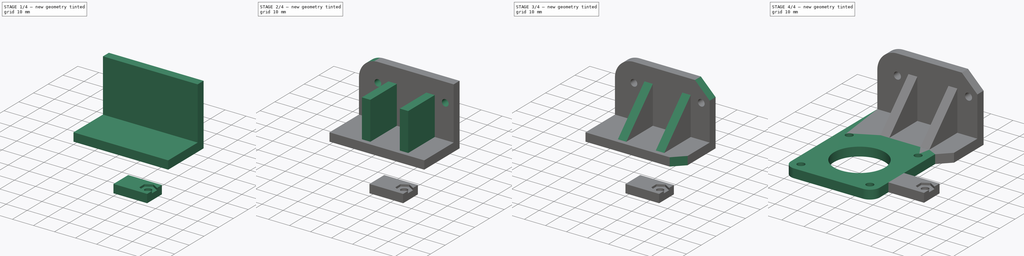
[diagram: build sequence overview — one tinted view per stage of 4, left to right]
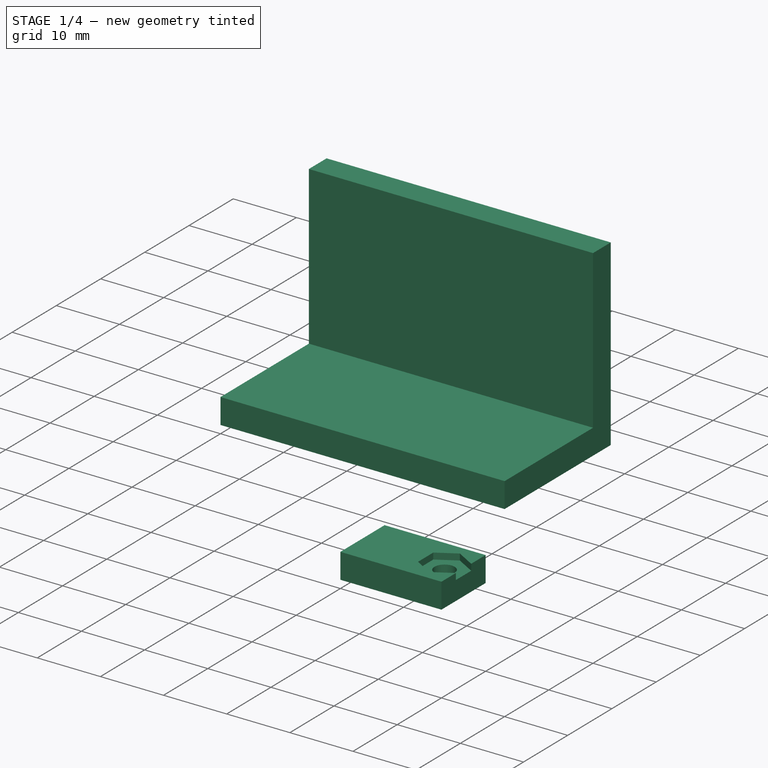
[diagram: stage 1 of 4 — iso view after this stage's code; geometry added in this stage tinted green]
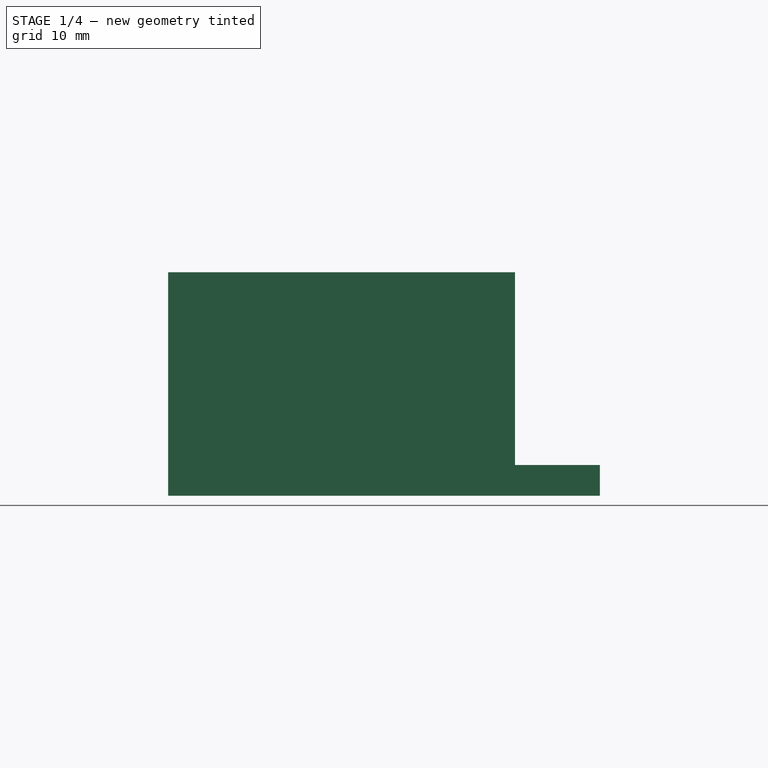
[diagram: stage 1 of 4 — front view after this stage's code; geometry added in this stage tinted green]
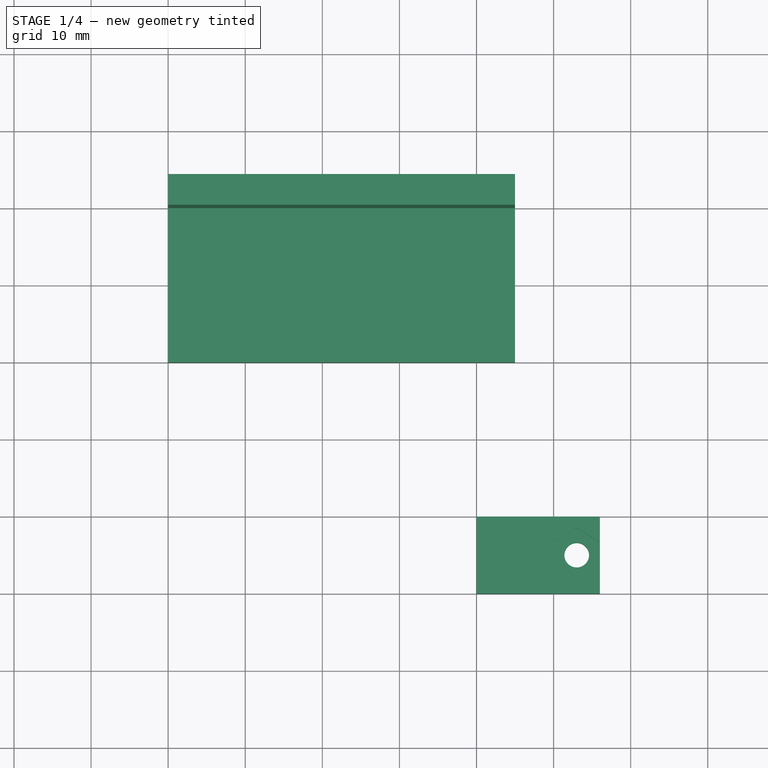
[diagram: stage 1 of 4 — top view after this stage's code; geometry added in this stage tinted green]
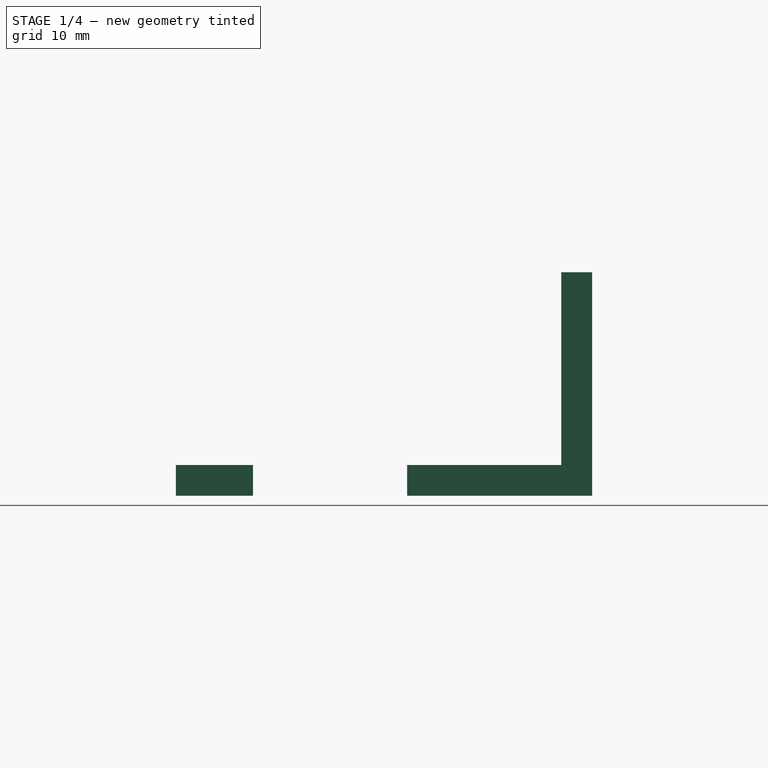
[diagram: stage 1 of 4 — right view after this stage's code; geometry added in this stage tinted green]
FCSTD DOCUMENT  (FreeCAD 0.18R14090 (Git))
Label: ExtruderDriveHolder_NEMA17
License: All rights reserved
LicenseURL: http://en.wikipedia.org/wiki/All_rights_reserved
objects: Sketcher::SketchObject×7, PartDesign::Pad×4, PartDesign::Pocket×3, PartDesign::Body×3, PartDesign::Chamfer×3, PartDesign::Fillet×2, PartDesign::Plane×1, Part::MultiFuse×1, App::Part×1, Part::FeaturePython×1
note: 32 computed .brp shape members not serialized (recipe doc carries the construction recipe); baked Part::Feature solids carry a one-line shape summary decoded from their .brp

FEATURE [Sketcher::SketchObject] Sketch001  label="ClippingBaseSketch"
  MapMode = 5
  Placement = pos=(0,0,0) rot=(0.57735,0.57735,0.57735;2.0944rad)
  Support = -> [YZ_Plane002]
  sketch-geometry (6):
    g0: LineSegment StartX=20 StartY=0 StartZ=0 EndX=44 EndY=0 EndZ=0
    g1: LineSegment StartX=40 StartY=4 StartZ=0 EndX=20 EndY=4 EndZ=0
    g2: LineSegment StartX=20 StartY=4 StartZ=0 EndX=20 EndY=0 EndZ=0
    g3: LineSegment StartX=44 StartY=0 StartZ=0 EndX=44 EndY=29 EndZ=0
    g4: LineSegment StartX=44 StartY=29 StartZ=0 EndX=40 EndY=29 EndZ=0
    g5: LineSegment StartX=40 StartY=29 StartZ=0 EndX=40 EndY=4 EndZ=0
  constraints (18):
    c: Coincident(g1,g2)
    c: Coincident(g2,g0)
    c: Horizontal(g0)
    c: Horizontal(g1)
    c: Vertical(g2)
    c: PointOnObject(g0,g-1)
    c: DistanceX(g-2,g0) = 20
    c: Distance(g1) = 20
    c: Coincident(g3,g4)
    c: Coincident(g4,g5)
    c: Horizontal(g4)
    c: Vertical(g3)
    c: Vertical(g5)
    c: Coincident(g0,g3)
    c: Distance(g1,g0) = 4
    c: Distance(g4) = 4
    c: Coincident(g1,g5)
    c: Distance(g5) = 25
FEATURE [PartDesign::Pad] Pad001  label="ClippingBasePad"
  Length = 25
  Length2 = 20
  Placement = pos=(0,0,0) rot=(0.57735,0.57735,0.57735;2.0944rad)
  Profile = -> Sketch001
  Type = 4
FEATURE [PartDesign::Body] Body001  label="ClippingBody"
  Group = -> [Sketch001,Pad001,Sketch002,Pad002,Sketch003,Pocket,Fillet001,Chamfer,Chamfer001,Chamfer002]
  Origin = -> Origin002
  Tip = -> Chamfer002
FEATURE [Sketcher::SketchObject] Sketch004  label="StandSketch"
  MapMode = 5
  Support = -> [XY_Plane003]
  sketch-geometry (4):
    g0: LineSegment StartX=20 StartY=0 StartZ=0 EndX=36 EndY=0 EndZ=0
    g1: LineSegment StartX=36 StartY=0 StartZ=0 EndX=36 EndY=-10 EndZ=0
    g2: LineSegment StartX=36 StartY=-10 StartZ=0 EndX=20 EndY=-10 EndZ=0
    g3: LineSegment StartX=20 StartY=-10 StartZ=0 EndX=20 EndY=0 EndZ=0
  constraints (12):
    c: Coincident(g0,g1)
    c: Coincident(g1,g2)
    c: Coincident(g2,g3)
    c: Coincident(g3,g0)
    c: Horizontal(g0)
    c: Horizontal(g2)
    c: Vertical(g1)
    c: Vertical(g3)
    c: PointOnObject(g0,g-1)
    c: DistanceX(g-2,g0) = 20
    c: Distance(g0) = 16
    c: Distance(g1) = 10
FEATURE [Sketcher::SketchObject] Sketch005  label="ScrewHoleSketch"
  ExternalGeometry = -> [Sketch004]
  MapMode = 5
  Support = -> [XY_Plane003]
  sketch-geometry (4):
    g0: Circle CenterX=33 CenterY=-5 CenterZ=0 NormalX=0 NormalY=0 NormalZ=1 AngleXU=0 Radius=1.6
    g1: LineSegment [constr] StartX=33 StartY=-5 StartZ=0 EndX=33 EndY=0 EndZ=0
    g2: LineSegment [constr] StartX=33 StartY=-5 StartZ=0 EndX=36 EndY=-5 EndZ=0
    g3: LineSegment [constr] StartX=33 StartY=-5 StartZ=0 EndX=33 EndY=-10 EndZ=0
  constraints (12):
    c: Radius(g0) = 1.6
    c: Coincident(g1,g0)
    c: Vertical(g1)
    c: Coincident(g2,g0)
    c: Horizontal(g2)
    c: PointOnObject(g2,g-3)
    c: PointOnObject(g1,g-1)
    c: Coincident(g3,g0)
    c: PointOnObject(g3,g-4)
    c: Vertical(g3)
    c: Equal(g1,g3)
    c: Distance(g2) = 3
FEATURE [PartDesign::Plane] DatumPlane  label="NutHolePlane"
  AttachmentOffset = pos=(0,0,4.5) rot=(0,0,1;0rad)
  MapMode = 5
  Placement = pos=(0,0,4.5) rot=(0,0,1;0rad)
  Support = -> [XY_Plane003]
FEATURE [Sketcher::SketchObject] Sketch006  label="NutHoleSketch"
  ExternalGeometry = -> [Sketch005]
  MapMode = 5
  Placement = pos=(0,0,4.5) rot=(0,0,1;0rad)
  Support = -> [DatumPlane]
  sketch-geometry (7):
    g0: LineSegment StartX=33 StartY=-8.4641 StartZ=0 EndX=36 EndY=-6.73205 EndZ=0
    g1: LineSegment StartX=36 StartY=-6.73205 StartZ=0 EndX=36 EndY=-3.26795 EndZ=0
    g2: LineSegment StartX=36 StartY=-3.26795 StartZ=0 EndX=33 EndY=-1.5359 EndZ=0
    g3: LineSegment StartX=33 StartY=-1.5359 StartZ=0 EndX=30 EndY=-3.26795 EndZ=0
    g4: LineSegment StartX=30 StartY=-3.26795 StartZ=0 EndX=30 EndY=-6.73205 EndZ=0
    g5: LineSegment StartX=30 StartY=-6.73205 StartZ=0 EndX=33 EndY=-8.4641 EndZ=0
    g6: Circle [constr] CenterX=33 CenterY=-5 CenterZ=0 NormalX=0 NormalY=0 NormalZ=1 AngleXU=0 Radius=3.4641
  constraints (16):
    c: Coincident(g0,g1)
    c: Coincident(g1,g2)
    c: Coincident(g2,g3)
    c: Coincident(g3,g4)
    c: Coincident(g4,g5)
    c: Coincident(g5,g0)
    c: Equal(g0, g1-g5) x5
    c: PointOnObject(g0,g6)
    c: PointOnObject(g1,g6)
    c: PointOnObject(g2,g6)
    c: PointOnObject(g3,g6)
    c: PointOnObject(g4,g6)
    c: PointOnObject(g5,g6)
    c: Coincident(g6,g-3)
    c: Distance(g3,g1) = 6
    c: Vertical(g1)
FEATURE [PartDesign::Pad] Pad003  label="StandPad"
  Length = 4
  Length2 = 100
  Profile = -> Sketch004
  Type = 0
FEATURE [PartDesign::Pocket] Pocket001  label="StandPocket"
  BaseFeature = -> Pad003
  Length = 5
  Length2 = 100
  Profile = -> Sketch005
  Reversed = true
  Type = 1
FEATURE [PartDesign::Pocket] Pocket002  label="NutHolePocket"
  BaseFeature = -> Pocket001
  Length = 1.5
  Length2 = 100
  Profile = -> Sketch006
  Type = 0
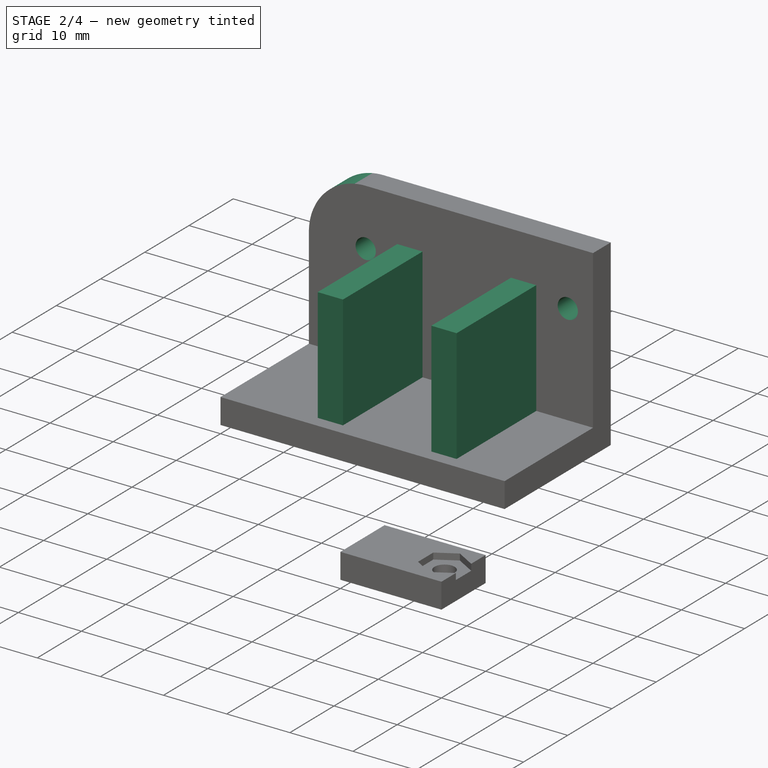
[diagram: stage 2 of 4 — iso view after this stage's code; geometry added in this stage tinted green]
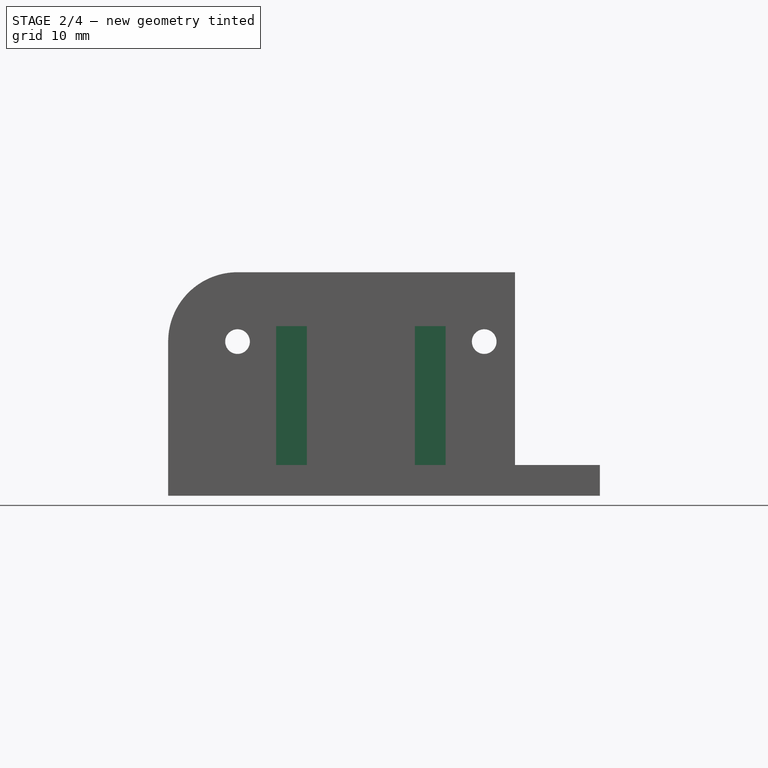
[diagram: stage 2 of 4 — front view after this stage's code; geometry added in this stage tinted green]
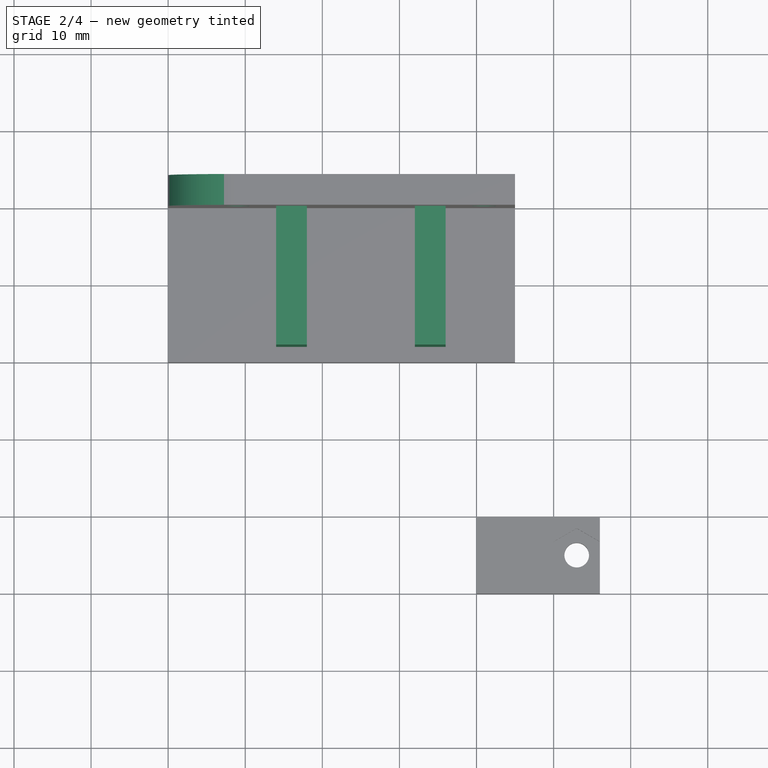
[diagram: stage 2 of 4 — top view after this stage's code; geometry added in this stage tinted green]
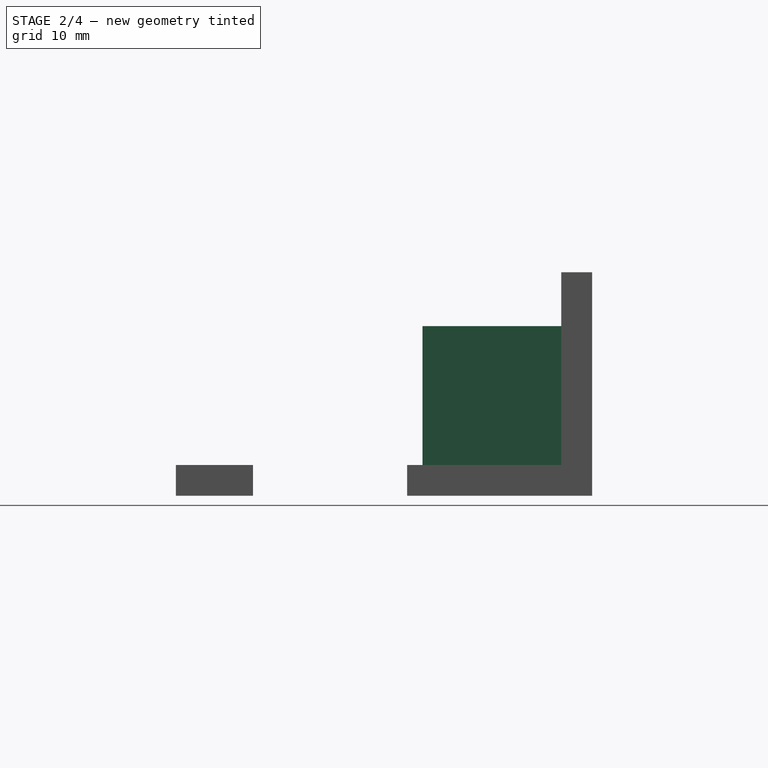
[diagram: stage 2 of 4 — right view after this stage's code; geometry added in this stage tinted green]
FEATURE [Sketcher::SketchObject] Sketch002  label="StiffenerSketch"
  ExternalGeometry = -> [Sketch001]
  MapMode = 5
  Support = -> [XY_Plane002]
  sketch-geometry (16):
    g0: LineSegment StartX=12 StartY=40 StartZ=0 EndX=16 EndY=40 EndZ=0
    g1: LineSegment StartX=16 StartY=40 StartZ=0 EndX=16 EndY=22 EndZ=0
    g2: LineSegment StartX=16 StartY=22 StartZ=0 EndX=12 EndY=22 EndZ=0
    g3: LineSegment StartX=12 StartY=22 StartZ=0 EndX=12 EndY=40 EndZ=0
    g4: LineSegment StartX=-6 StartY=40 StartZ=0 EndX=-2 EndY=40 EndZ=0
    g5: LineSegment StartX=-2 StartY=40 StartZ=0 EndX=-2 EndY=22 EndZ=0
    g6: LineSegment StartX=-2 StartY=22 StartZ=0 EndX=-6 EndY=22 EndZ=0
    g7: LineSegment StartX=-6 StartY=22 StartZ=0 EndX=-6 EndY=40 EndZ=0
    g8: LineSegment [constr] StartX=4e-12 StartY=40 StartZ=0 EndX=-20 EndY=40 EndZ=0
    g9: LineSegment [constr] StartX=4e-12 StartY=40 StartZ=0 EndX=30 EndY=40 EndZ=0
    g10: LineSegment [constr] StartX=-20 StartY=40 StartZ=0 EndX=-20 EndY=22 EndZ=0
    g11: LineSegment [constr] StartX=-2 StartY=22 StartZ=0 EndX=12 EndY=22 EndZ=0
    g12: LineSegment [constr] StartX=16 StartY=22 StartZ=0 EndX=30 EndY=22 EndZ=0
    g13: LineSegment [constr] StartX=30 StartY=22 StartZ=0 EndX=30 EndY=40 EndZ=0
    g14: LineSegment [constr] StartX=-6 StartY=22 StartZ=0 EndX=-10 EndY=22 EndZ=0
    g15: LineSegment [constr] StartX=-10 StartY=22 StartZ=0 EndX=-20 EndY=22 EndZ=0
  constraints (45):
    c: Coincident(g0,g1)
    c: Coincident(g1,g2)
    c: Coincident(g2,g3)
    c: Coincident(g3,g0)
    c: Horizontal(g0)
    c: Horizontal(g2)
    c: Vertical(g1)
    c: Vertical(g3)
    c: Coincident(g4,g5)
    c: Coincident(g5,g6)
    c: Coincident(g6,g7)
    c: Coincident(g7,g4)
    c: Horizontal(g4)
    c: Horizontal(g6)
    c: Vertical(g5)
    c: Vertical(g7)
    c: Equal(g4,g0)
    c: Distance(g6) = 4
    c: Distance(g1) = 18
    c: Coincident(g8,g-3)
    c: Horizontal(g8)
    c: Coincident(g9,g8)
    c: Horizontal(g9)
    c: PointOnObject(g0,g9)
    c: PointOnObject(g4,g8)
    c: Distance(g8) = 20
    c: Distance(g9) = 30
    c: Coincident(g10,g8)
    c: Vertical(g10)
    c: Coincident(g11,g5)
    c: Coincident(g11,g2)
    c: Horizontal(g11)
    c: Coincident(g12,g1)
    c: Horizontal(g12)
    c: Coincident(g13,g12)
    c: Coincident(g13,g9)
    c: Vertical(g13)
    c: Coincident(g14,g6)
    c: Horizontal(g14)
    c: Coincident(g15,g14)
    c: Coincident(g15,g10)
    c: Horizontal(g15)
    c: Distance(g15) = 10
    c: Equal(g12,g11)
    c: Distance(g14) = 4
FEATURE [PartDesign::Pad] Pad002  label="StiffenerPad"
  BaseFeature = -> Pad001
  Length = 22
  Length2 = 100
  Placement = pos=(0,0,0) rot=(0.57735,0.57735,0.57735;2.0944rad)
  Profile = -> Sketch002
  Type = 0
FEATURE [Sketcher::SketchObject] Sketch003  label="ScrewsSketch"
  MapMode = 5
  Placement = pos=(0,0,0) rot=(1,0,0;1.5708rad)
  Support = -> [XZ_Plane002]
  sketch-geometry (5):
    g0: Circle CenterX=21 CenterY=20 CenterZ=0 NormalX=0 NormalY=0 NormalZ=1 AngleXU=0 Radius=1.6
    g1: Circle CenterX=-11 CenterY=20 CenterZ=0 NormalX=0 NormalY=0 NormalZ=1 AngleXU=0 Radius=1.6
    g2: LineSegment [constr] StartX=0 StartY=20 StartZ=0 EndX=0 EndY=0 EndZ=0
    g3: LineSegment [constr] StartX=0 StartY=20 StartZ=0 EndX=-11 EndY=20 EndZ=0
    g4: LineSegment [constr] StartX=0 StartY=20 StartZ=0 EndX=21 EndY=20 EndZ=0
  constraints (13):
    c: Coincident(g2,g-1)
    c: PointOnObject(g2,g-2)
    c: Radius(g1) = 1.6
    c: Equal(g1,g0)
    c: Distance(g2) = 20
    c: Coincident(g3,g2)
    c: Horizontal(g3)
    c: Coincident(g4,g2)
    c: Horizontal(g4)
    c: Distance(g4) = 21
    c: Distance(g3) = 11
    c: Coincident(g0,g4)
    c: Coincident(g1,g3)
FEATURE [PartDesign::Pocket] Pocket  label="ScrewsPocket"
  BaseFeature = -> Pad002
  Length = 5
  Length2 = 100
  Placement = pos=(0,0,0) rot=(0.57735,0.57735,0.57735;2.0944rad)
  Profile = -> Sketch003
  Type = 1
FEATURE [PartDesign::Body] Body  label="Nema17HolderBody"
  Group = -> [Sketch,Pad,Fillet]
  Origin = -> Origin001
  Tip = -> Fillet
FEATURE [PartDesign::Fillet] Fillet001  label="ClippingCornerFillet"
  Base = -> Pocket [Edge28]
  BaseFeature = -> Pocket
  Placement = pos=(0,0,0) rot=(0.57735,0.57735,0.57735;2.0944rad)
  Radius = 9
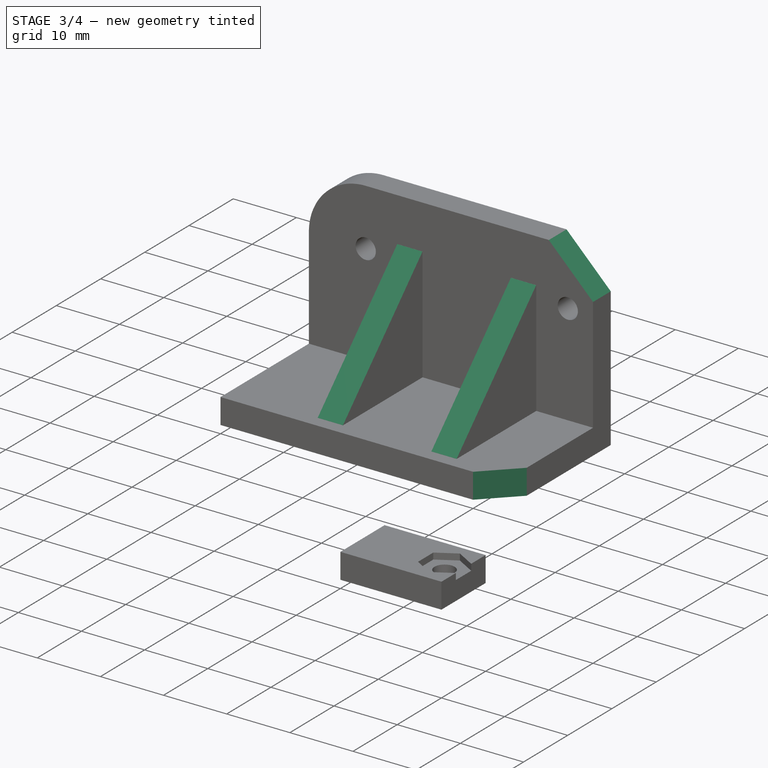
[diagram: stage 3 of 4 — iso view after this stage's code; geometry added in this stage tinted green]
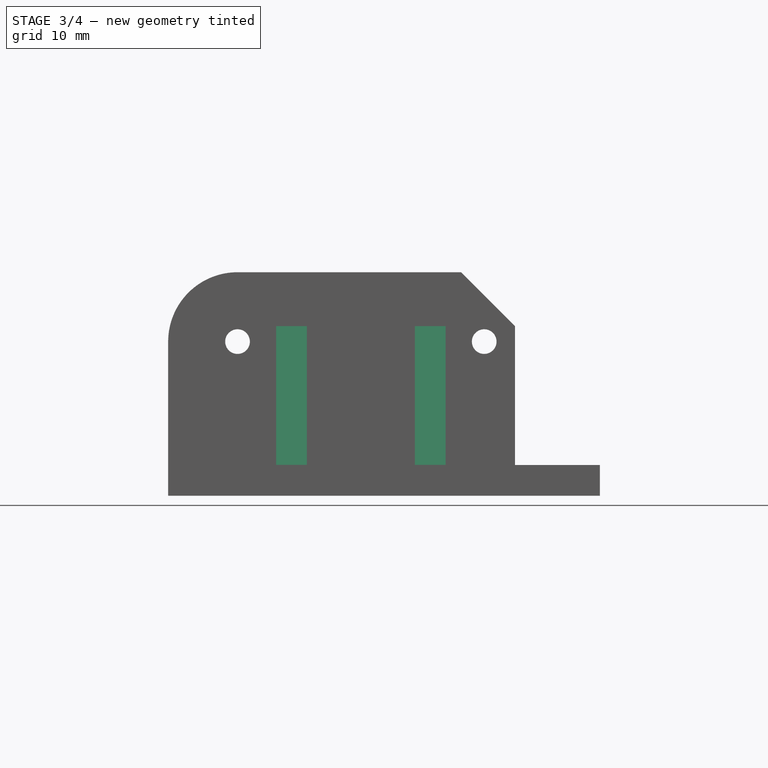
[diagram: stage 3 of 4 — front view after this stage's code; geometry added in this stage tinted green]
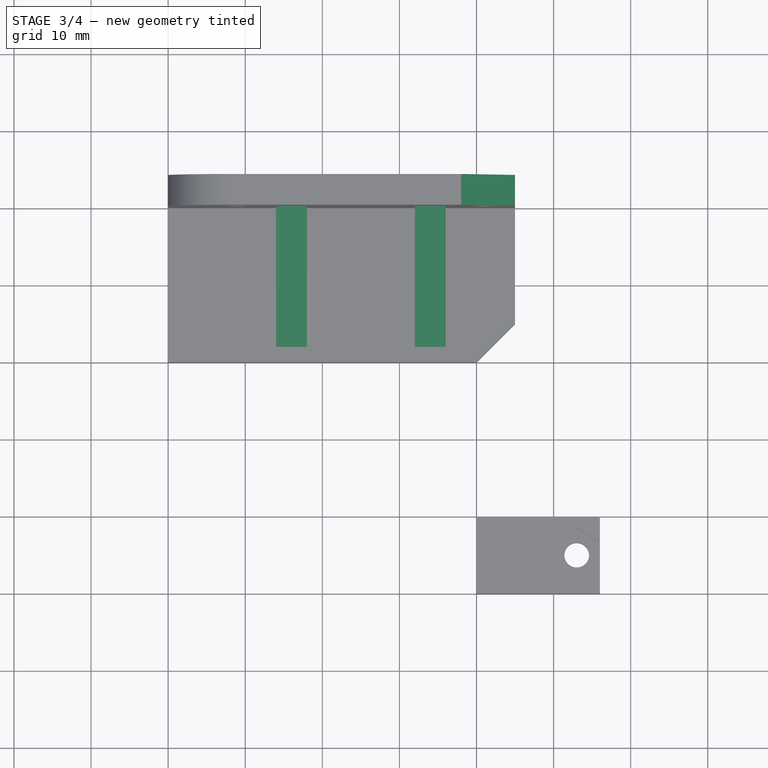
[diagram: stage 3 of 4 — top view after this stage's code; geometry added in this stage tinted green]
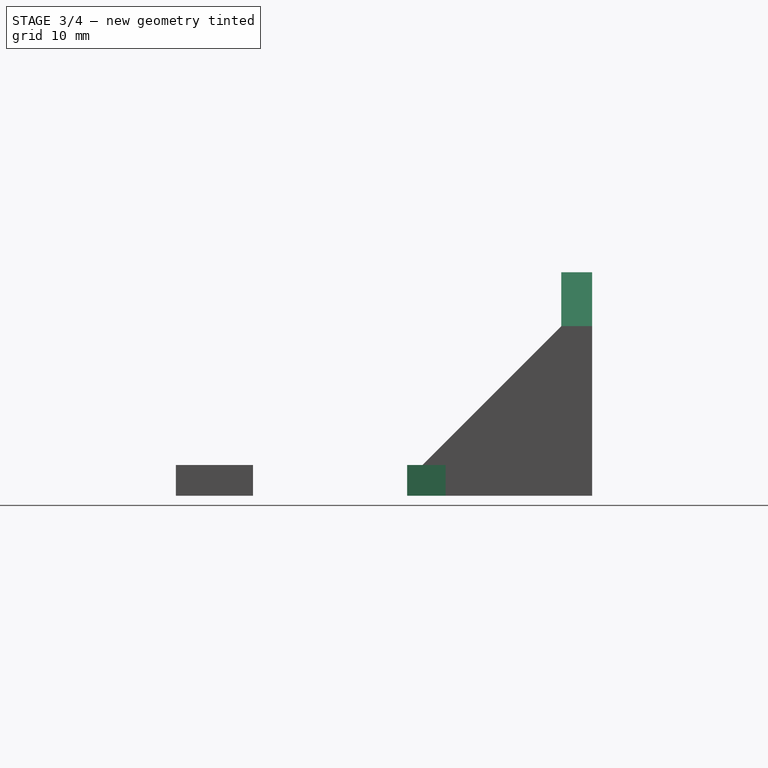
[diagram: stage 3 of 4 — right view after this stage's code; geometry added in this stage tinted green]
FEATURE [PartDesign::Chamfer] Chamfer  label="ClippingCornerChamfer1"
  Base = -> Fillet001 [Edge47]
  BaseFeature = -> Fillet001
  Placement = pos=(0,0,0) rot=(0.57735,0.57735,0.57735;2.0944rad)
  Size = 7
FEATURE [PartDesign::Chamfer] Chamfer001  label="ClippingCornerChamfer2"
  Base = -> Chamfer [Edge18]
  BaseFeature = -> Chamfer
  Placement = pos=(0,0,0) rot=(0.57735,0.57735,0.57735;2.0944rad)
  Size = 5
FEATURE [PartDesign::Chamfer] Chamfer002  label="StiffenersChamfer"
  Base = -> Chamfer001 [Edge60,Edge63]
  BaseFeature = -> Chamfer001
  Placement = pos=(0,0,0) rot=(0.57735,0.57735,0.57735;2.0944rad)
  Size = 17.99
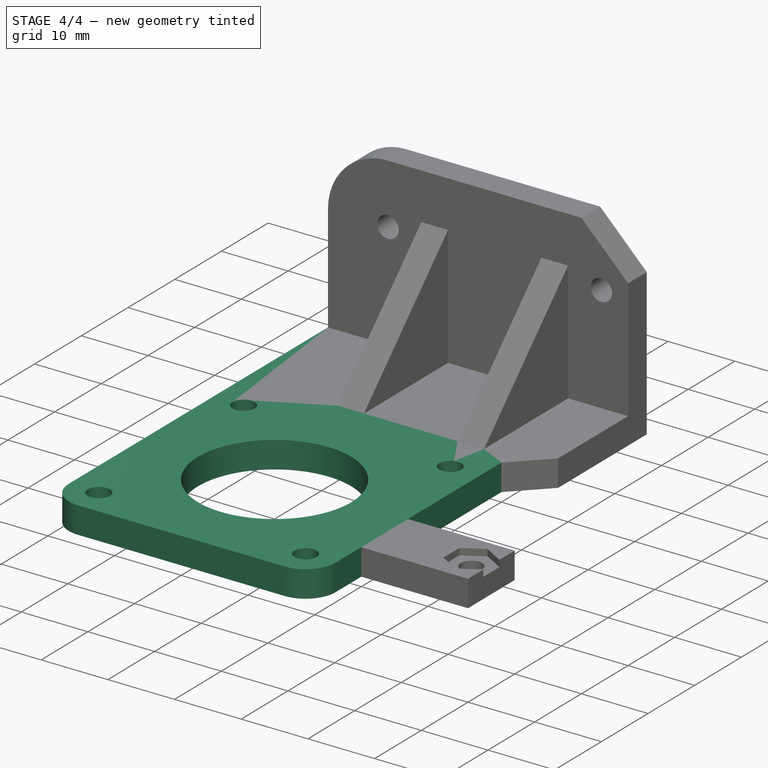
[diagram: stage 4 of 4 — iso view after this stage's code; geometry added in this stage tinted green]
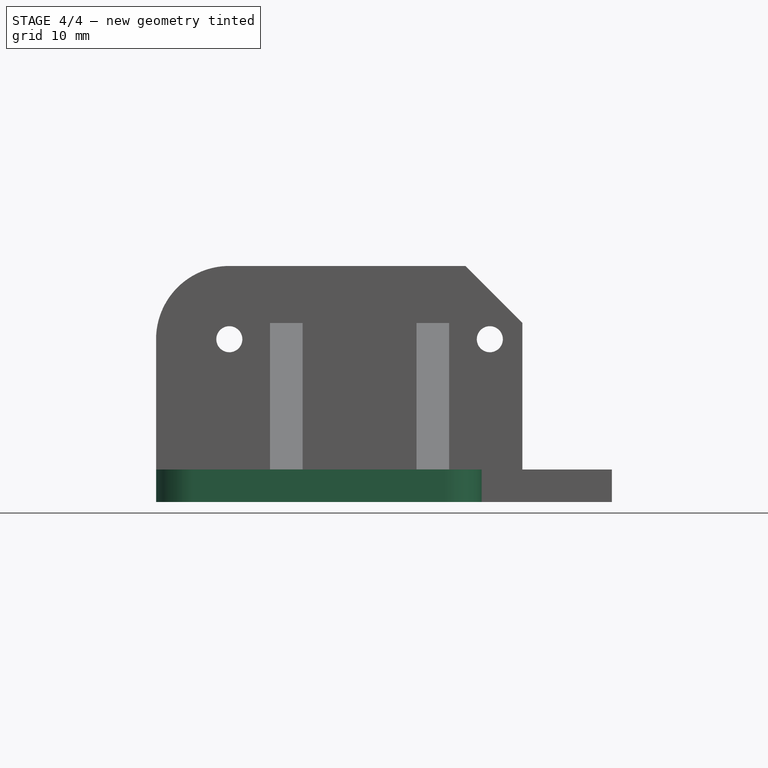
[diagram: stage 4 of 4 — front view after this stage's code; geometry added in this stage tinted green]
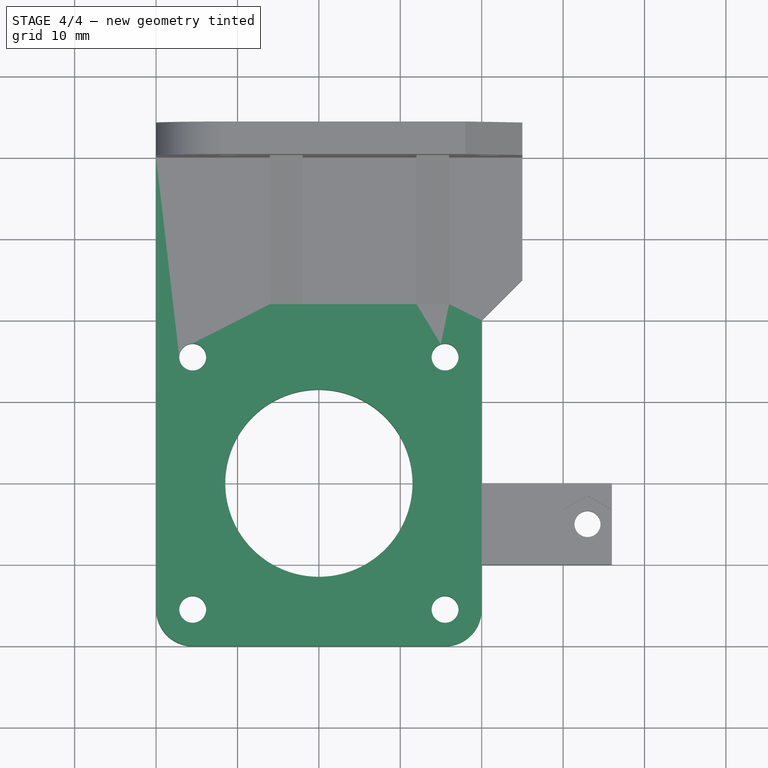
[diagram: stage 4 of 4 — top view after this stage's code; geometry added in this stage tinted green]
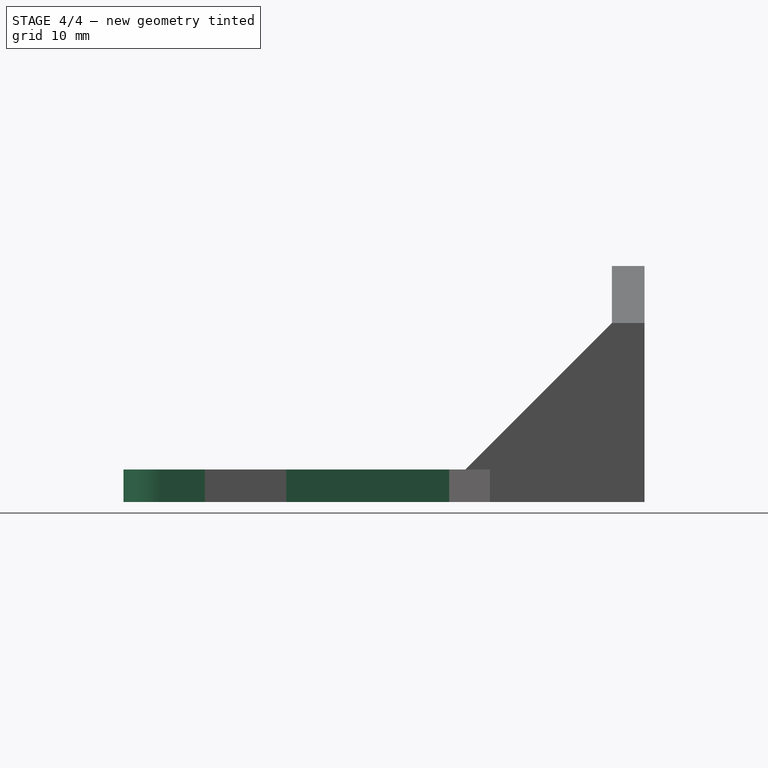
[diagram: stage 4 of 4 — right view after this stage's code; geometry added in this stage tinted green]
FEATURE [Sketcher::SketchObject] Sketch  label="HolderBaseSketch"
  MapMode = 5
  Support = -> [XY_Plane001]
  sketch-geometry (15):
    g0: LineSegment StartX=20 StartY=-20 StartZ=0 EndX=20 EndY=20 EndZ=0
    g1: LineSegment StartX=20 StartY=20 StartZ=0 EndX=-20 EndY=20 EndZ=0
    g2: LineSegment StartX=-20 StartY=20 StartZ=0 EndX=-20 EndY=-20 EndZ=0
    g3: LineSegment StartX=-20 StartY=-20 StartZ=0 EndX=20 EndY=-20 EndZ=0
    g4: Circle [constr] CenterX=0 CenterY=0 CenterZ=0 NormalX=0 NormalY=0 NormalZ=1 AngleXU=0 Radius=28.2843
    g5: LineSegment [constr] StartX=15.5 StartY=-15.5 StartZ=0 EndX=15.5 EndY=15.5 EndZ=0
    g6: LineSegment [constr] StartX=15.5 StartY=15.5 StartZ=0 EndX=-15.5 EndY=15.5 EndZ=0
    g7: LineSegment [constr] StartX=-15.5 StartY=15.5 StartZ=0 EndX=-15.5 EndY=-15.5 EndZ=0
    g8: LineSegment [constr] StartX=-15.5 StartY=-15.5 StartZ=0 EndX=15.5 EndY=-15.5 EndZ=0
    g9: Circle [constr] CenterX=0 CenterY=0 CenterZ=0 NormalX=0 NormalY=0 NormalZ=1 AngleXU=0 Radius=21.9203
    g10: Circle CenterX=-15.5 CenterY=15.5 CenterZ=0 NormalX=0 NormalY=0 NormalZ=1 AngleXU=0 Radius=1.65
    g11: Circle CenterX=15.5 CenterY=15.5 CenterZ=0 NormalX=0 NormalY=0 NormalZ=1 AngleXU=0 Radius=1.65
    g12: Circle CenterX=15.5 CenterY=-15.5 CenterZ=0 NormalX=0 NormalY=0 NormalZ=1 AngleXU=0 Radius=1.65
    g13: Circle CenterX=-15.5 CenterY=-15.5 CenterZ=0 NormalX=0 NormalY=0 NormalZ=1 AngleXU=0 Radius=1.65
    g14: Circle CenterX=0 CenterY=0 CenterZ=0 NormalX=0 NormalY=0 NormalZ=1 AngleXU=0 Radius=11.5
  constraints (38):
    c: Coincident(g0,g1)
    c: Coincident(g1,g2)
    c: Coincident(g2,g3)
    c: Coincident(g3,g0)
    c: Equal(g0,g1)
    c: Equal(g0,g2)
    c: Equal(g0,g3)
    c: PointOnObject(g0,g4)
    c: PointOnObject(g1,g4)
    c: PointOnObject(g2,g4)
    c: PointOnObject(g3,g4)
    c: Coincident(g4,g-1)
    c: Vertical(g0)
    c: Coincident(g5,g6)
    c: Coincident(g6,g7)
    c: Coincident(g7,g8)
    c: Coincident(g8,g5)
    c: Equal(g5,g6)
    c: Equal(g5,g7)
    c: Equal(g5,g8)
    c: PointOnObject(g5,g9)
    c: PointOnObject(g6,g9)
    c: PointOnObject(g7,g9)
    c: PointOnObject(g8,g9)
    c: Coincident(g9,g-1)
    c: Vertical(g5)
    c: Coincident(g10,g6)
    c: Coincident(g11,g5)
    c: Coincident(g12,g5)
    c: Coincident(g13,g7)
    c: Equal(g13,g12)
    c: Equal(g12,g11)
    c: Equal(g11,g10)
    c: Radius(g10) = 1.65
    c: Distance(g6) = 31
    c: Distance(g1) = 40
    c: Coincident(g14,g-1)
    c: Radius(g14) = 11.5
FEATURE [PartDesign::Pad] Pad  label="HolderBasePad"
  Length = 4
  Length2 = 100
  Profile = -> Sketch
  Type = 0
FEATURE [PartDesign::Fillet] Fillet  label="HolderCornersFillet"
  Base = -> Pad [Edge1,Edge8]
  BaseFeature = -> Pad
  Radius = 4.5
FEATURE [PartDesign::Body] Body002  label="SideStandBody"
  Group = -> [DatumPlane,Sketch005,Sketch004,Sketch006,Pad003,Pocket001,Pocket002]
  Origin = -> Origin003
  Tip = -> Pocket002
FEATURE [Part::MultiFuse] Fusion  label="HolderFusion"
  Shapes = -> [Body,Body001,Body002]
FEATURE [App::Part] Part  label="Nema17Holder"
  Group = -> [Body,Body001,Body002,Fusion]
  License = CC BY 3.0
  LicenseURL = http://creativecommons.org/licenses/by/3.0/
  Origin = -> Origin
FEATURE [Part::FeaturePython] refine  label="HolderFusion_Refined"  # WARN: FeaturePython — macro-defined, semantics opaque (R4)
  Base = -> Fusion
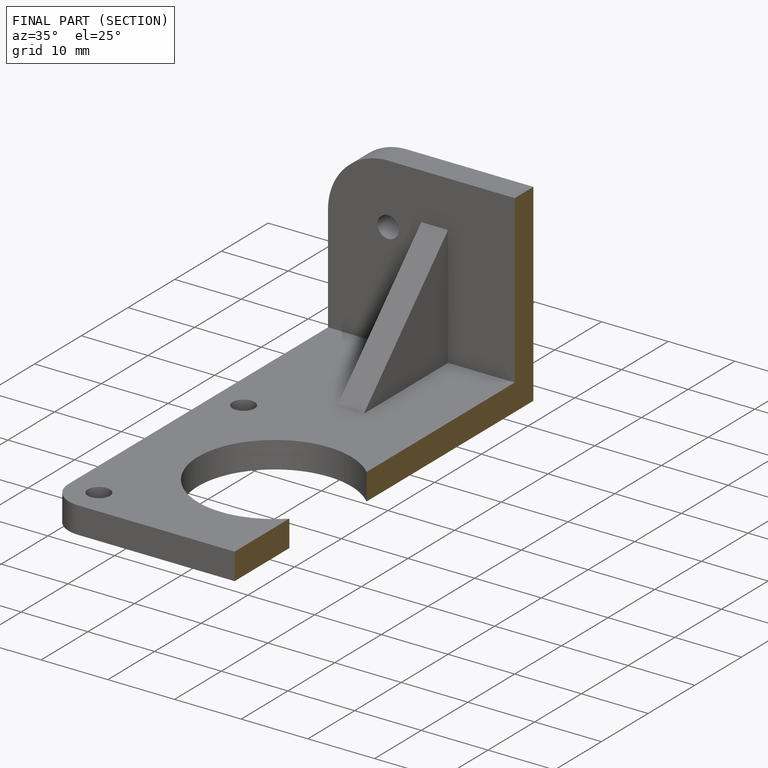
[diagram: finished part — half-section view (interior)]
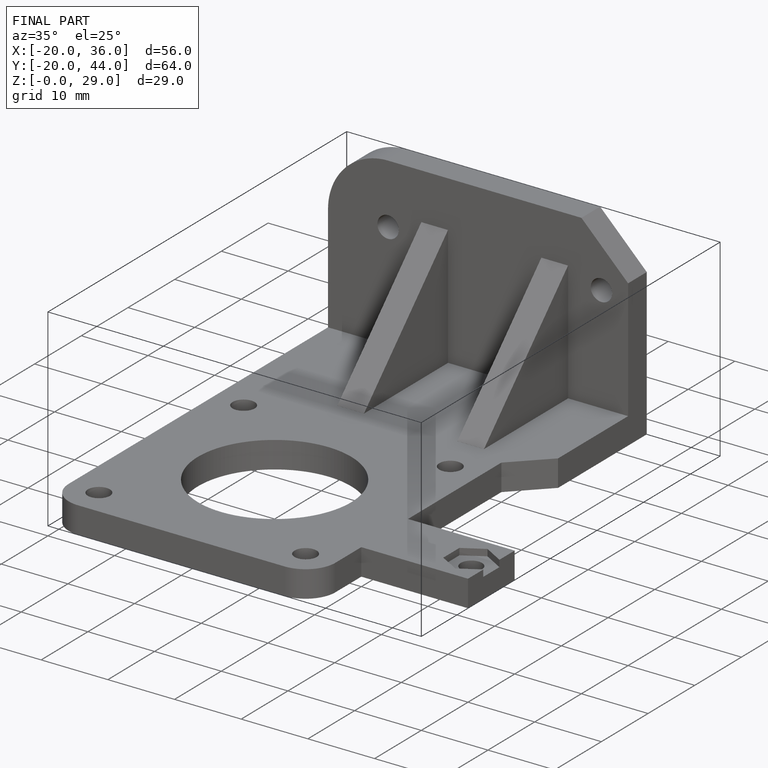
[diagram: finished part — iso view with bounding-box wireframe]
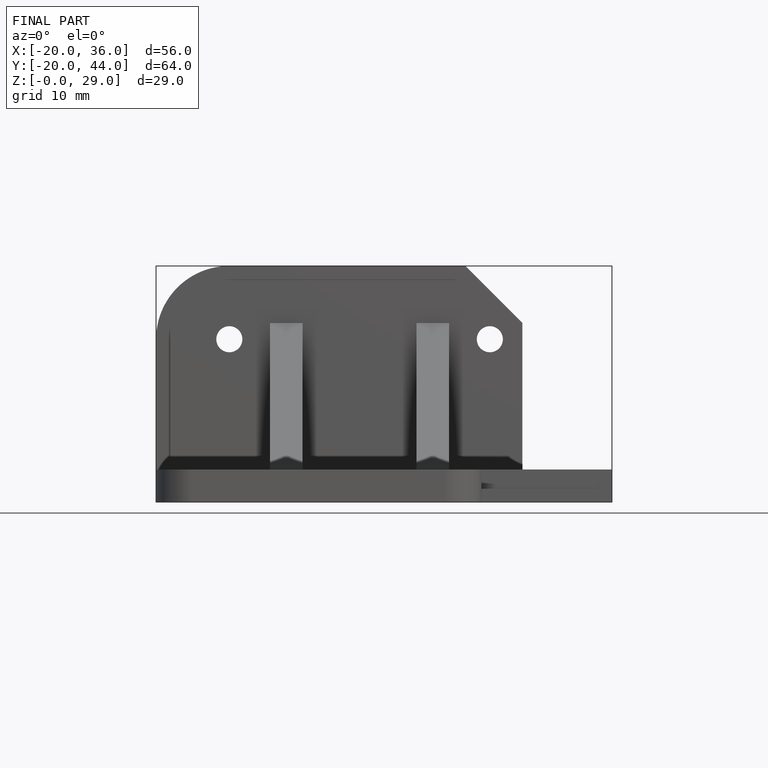
[diagram: finished part — front view with bounding-box wireframe]
